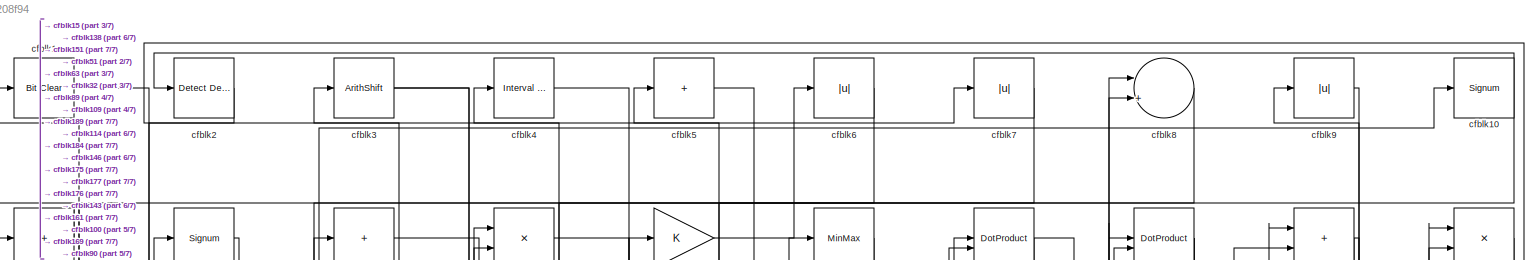
[diagram: root canvas - part 1/7, full width, top band]
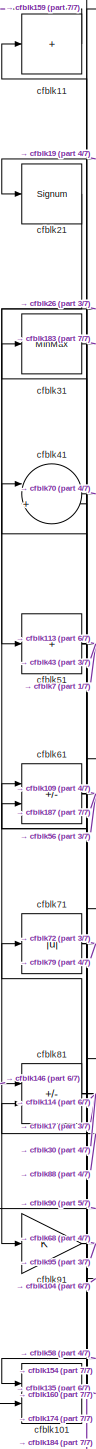
[diagram: root canvas - part 2/7, top left region]
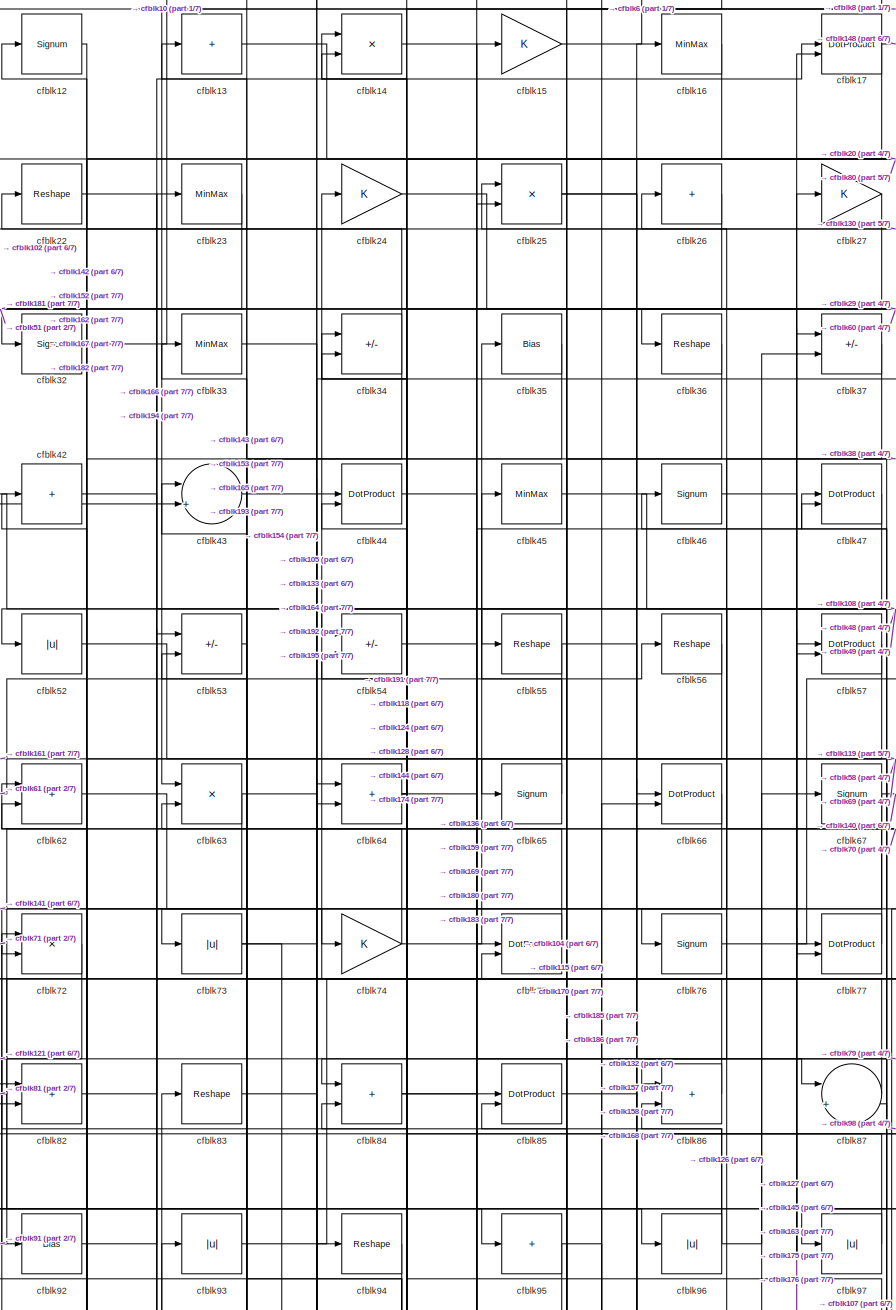
[diagram: root canvas - part 3/7, top center region]
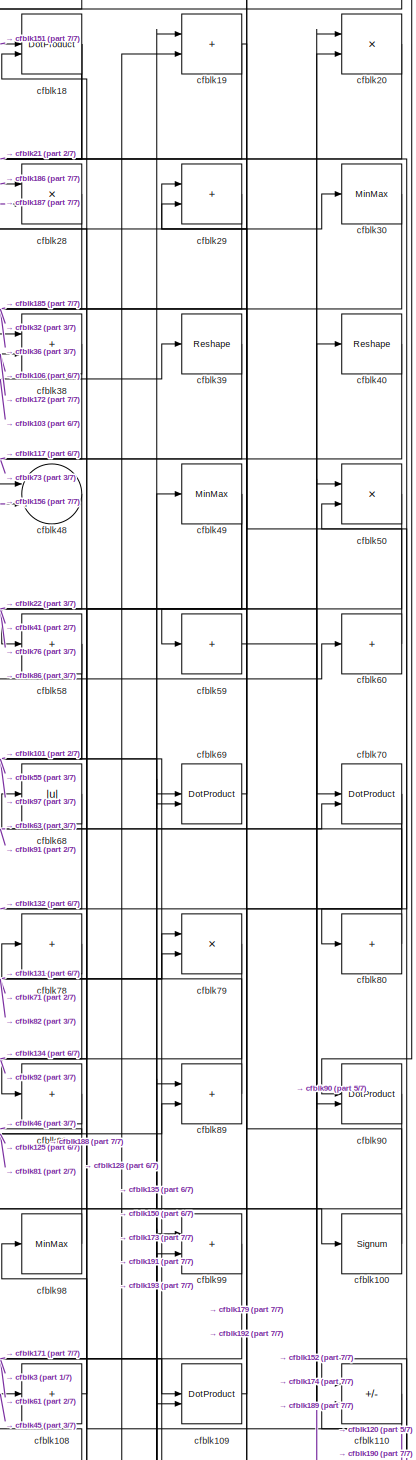
[diagram: root canvas - part 4/7, top right region]
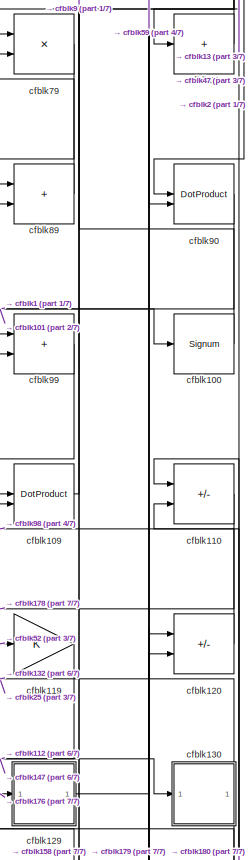
[diagram: root canvas - part 5/7, middle right region]
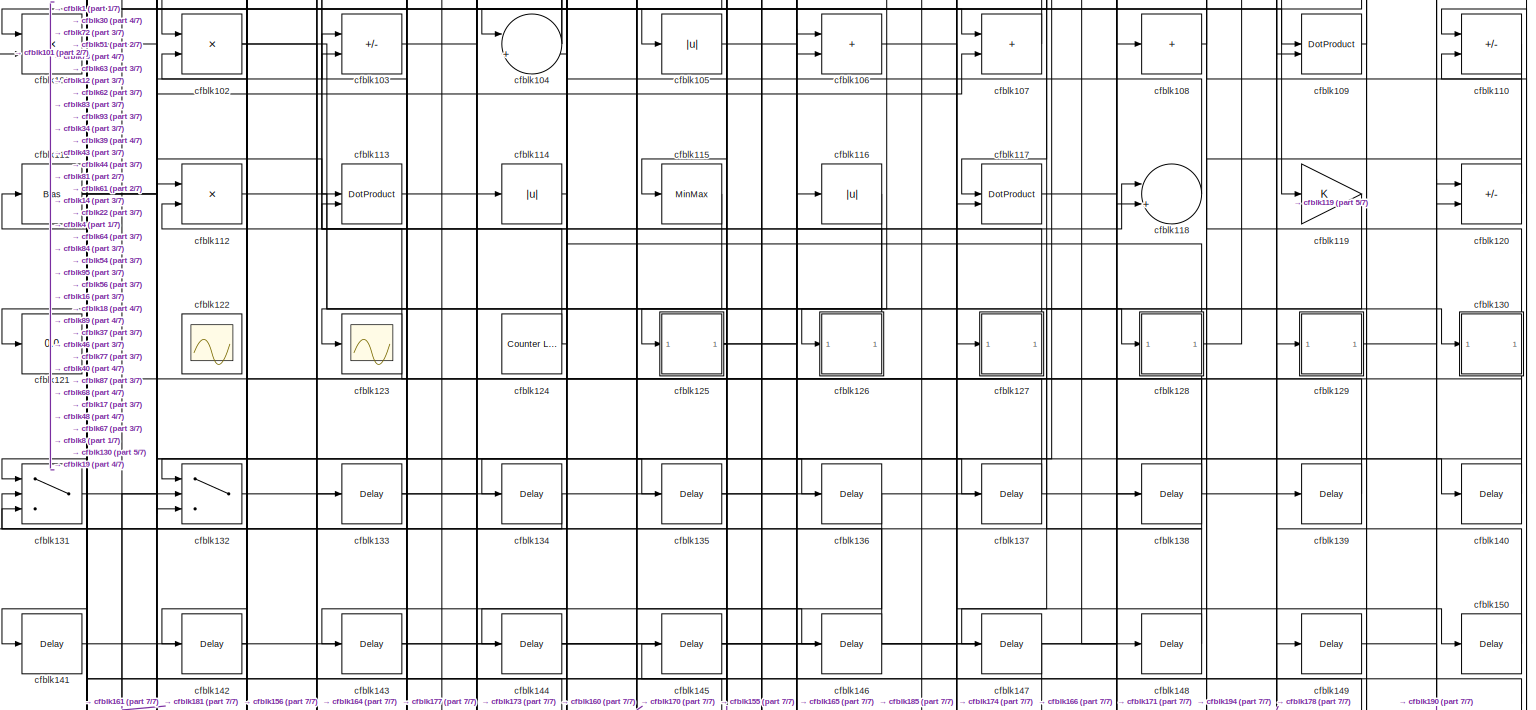
[diagram: root canvas - part 6/7, full width, middle band]
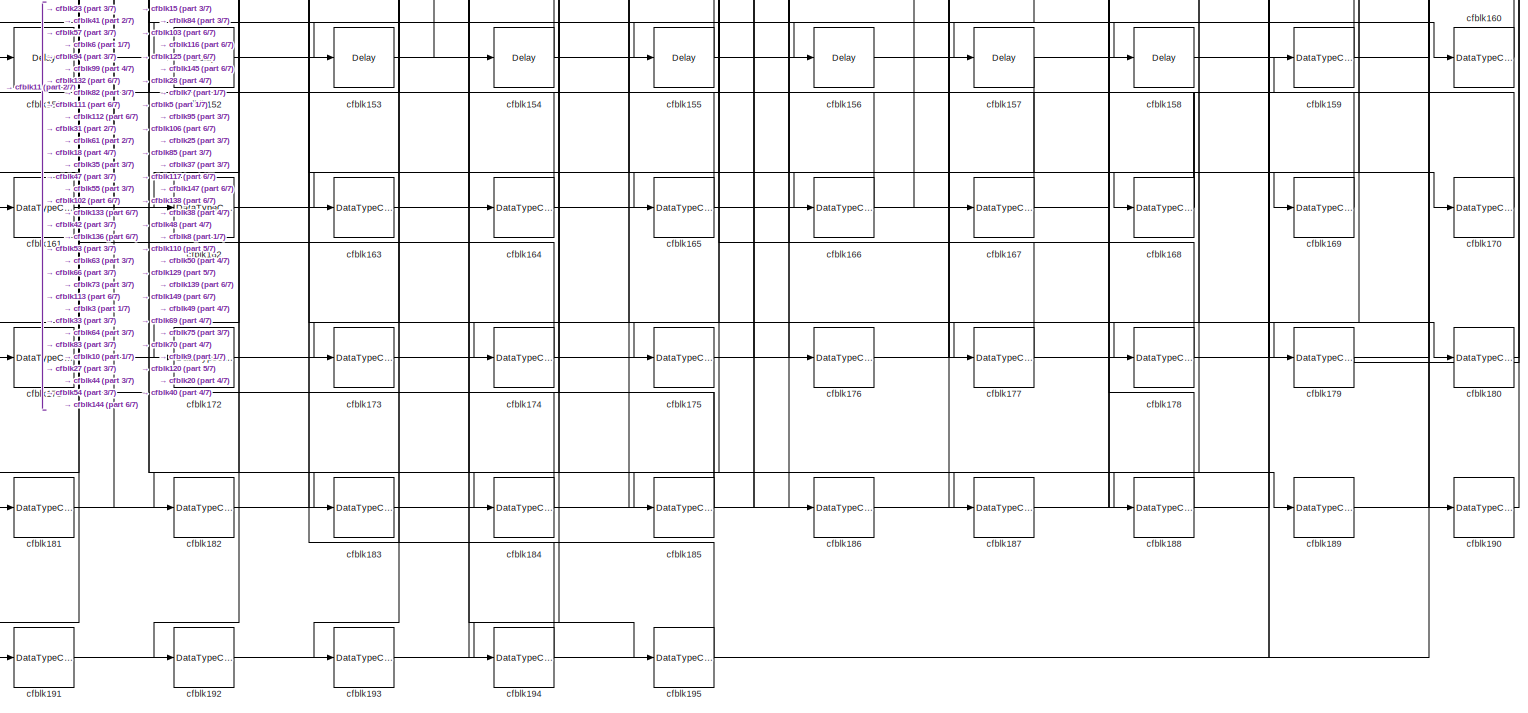
[diagram: root canvas - part 7/7, full width, bottom band]
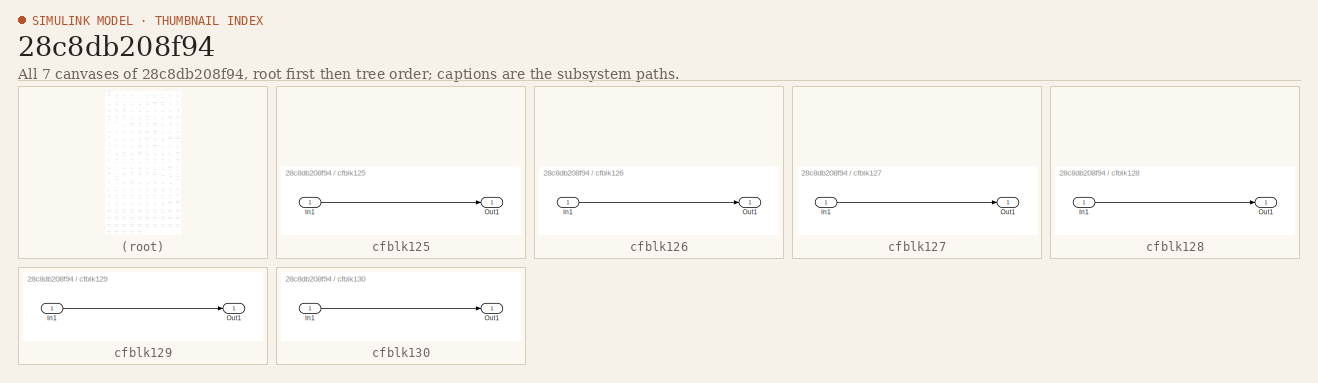
[diagram: thumbnail index - all 7 canvases of the model, root first then tree order]
MODEL slx_28c8db208f94
KIND model
CONFIG AbsTol = auto
CONFIG EnableMultiTasking = off
CONFIG FixedStep = auto
CONFIG MaxStep = auto
CONFIG MinStep = auto
CONFIG RelTol = 1e-3
CONFIG SampleTimeConstraint = Unconstrained
CONFIG SolverName = VariableStepAuto
CONFIG StartTime = 0.0
CONFIG StopTime = 10.0
BLOCK [Reference] cfblk1  REF=simulink/Logic and Bit
Operations/Bit Clear
  LibrarySourceBlock = hdlsllib/Logic and Bit\nOperations/Bit Clear
  SourceBlock = simulink/Logic and Bit\nOperations/Bit Clear
  SourceType = Bit Clear
BLOCK [Signum] cfblk10
BLOCK [Signum] cfblk100
BLOCK [Product] cfblk101
  Inputs = */
  RndMeth = Zero
  SaturateOnIntegerOverflow = on
BLOCK [Product] cfblk102
  Inputs = */
  RndMeth = Zero
  SaturateOnIntegerOverflow = on
BLOCK [Sum] cfblk103
  IconShape = rectangular
  Inputs = +-
BLOCK [Sum] cfblk104
  Inputs = |++
BLOCK [Abs] cfblk105
  SaturateOnIntegerOverflow = off
BLOCK [Sum] cfblk106
  IconShape = rectangular
BLOCK [Sum] cfblk107
  IconShape = rectangular
BLOCK [Sum] cfblk108
  IconShape = rectangular
  Inputs = +
BLOCK [DotProduct] cfblk109
  OutDataTypeStr = Inherit: Inherit via internal rule
BLOCK [Sum] cfblk11
  IconShape = rectangular
  Inputs = +
BLOCK [Sum] cfblk110
  IconShape = rectangular
  Inputs = +-
BLOCK [Bias] cfblk111
  Bias = 0.0
  SaturateOnIntegerOverflow = off
BLOCK [Product] cfblk112
  Inputs = */
  RndMeth = Zero
  SaturateOnIntegerOverflow = on
BLOCK [DotProduct] cfblk113
  OutDataTypeStr = Inherit: Inherit via internal rule
BLOCK [Abs] cfblk114
  SaturateOnIntegerOverflow = off
BLOCK [MinMax] cfblk115
BLOCK [Abs] cfblk116
  SaturateOnIntegerOverflow = off
BLOCK [DotProduct] cfblk117
  OutDataTypeStr = Inherit: Inherit via internal rule
BLOCK [Sum] cfblk118
  Inputs = |++
BLOCK [Gain] cfblk119
BLOCK [Signum] cfblk12
BLOCK [Sum] cfblk120
  IconShape = rectangular
  Inputs = +-
BLOCK [Display] cfblk121
  Decimation = 1
BLOCK [Scope] cfblk122
  Floating = on
  NumInputPorts = 1
  ScopeSpecificationString = Simulink.scopes.TimeScopeBlockCfg('CurrentConfiguration', extmgr.ConfigurationSet(extmgr.Configuration('Core','General UI',true,'FigureColor',[0.156862745098039 0.156862745098039 0.156862745098039]),extmgr.Configuration('Core','Source UI',true),extmgr.Configuration('Sources','WiredSimulink',true,'DataLoggingVariableName','ScopeData1','DataLoggingSaveFormat','StructureWithTime','DataLoggingLimitDat...<+2713ch>
BLOCK [Scope] cfblk123
  Floating = off
  NumInputPorts = 1
  ScopeSpecificationString = Simulink.scopes.TimeScopeBlockCfg('CurrentConfiguration', extmgr.ConfigurationSet(extmgr.Configuration('Core','General UI',true),extmgr.Configuration('Core','Source UI',true),extmgr.Configuration('Sources','WiredSimulink',true,'DataLoggingVariableName','ScopeData2','DataLoggingSaveFormat','Array','DataLoggingLimitDataPoints',true,'DataLoggingDecimation','1'),extmgr.Configuration('Visuals','Time Do...<+868ch>
BLOCK [Reference] cfblk124  REF=hdlsllib/Sources/Counter
Limited
  SourceBlock = hdlsllib/Sources/Counter\nLimited
  SourceType = Counter Limited
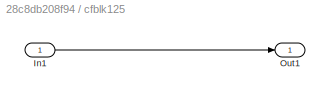
BLOCK [SubSystem] cfblk125
  LibrarySourceBlock = hdlsllib/Ports &\nSubsystems/Subsystem
BLOCK [Inport] cfblk125/In1
BLOCK [Outport] cfblk125/Out1
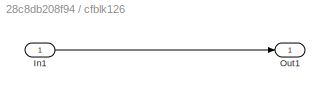
BLOCK [SubSystem] cfblk126
  LibrarySourceBlock = hdlsllib/Ports &\nSubsystems/Subsystem
BLOCK [Inport] cfblk126/In1
BLOCK [Outport] cfblk126/Out1
BLOCK [SubSystem] cfblk127
  LibrarySourceBlock = hdlsllib/Ports &\nSubsystems/Subsystem
BLOCK [Inport] cfblk127/In1
BLOCK [Outport] cfblk127/Out1
BLOCK [SubSystem] cfblk128
  LibrarySourceBlock = hdlsllib/Ports &\nSubsystems/Subsystem
BLOCK [Inport] cfblk128/In1
BLOCK [Outport] cfblk128/Out1
BLOCK [SubSystem] cfblk129
  LibrarySourceBlock = hdlsllib/Ports &\nSubsystems/Subsystem
BLOCK [Inport] cfblk129/In1
BLOCK [Outport] cfblk129/Out1
BLOCK [Sum] cfblk13
  IconShape = rectangular
  Inputs = +
BLOCK [SubSystem] cfblk130
  LibrarySourceBlock = hdlsllib/Ports &\nSubsystems/Subsystem
BLOCK [Inport] cfblk130/In1
BLOCK [Outport] cfblk130/Out1
BLOCK [Switch] cfblk131
  InputSameDT = off
  SaturateOnIntegerOverflow = off
BLOCK [Switch] cfblk132
  InputSameDT = off
  SaturateOnIntegerOverflow = off
BLOCK [Delay] cfblk133
  InputPortMap = u0
  SampleTime = 1
BLOCK [Delay] cfblk134
  InputPortMap = u0
  SampleTime = 1
BLOCK [Delay] cfblk135
  InputPortMap = u0
  SampleTime = 1
BLOCK [Delay] cfblk136
  InputPortMap = u0
  SampleTime = 1
BLOCK [Delay] cfblk137
  InputPortMap = u0
  SampleTime = 1
BLOCK [Delay] cfblk138
  InputPortMap = u0
  SampleTime = 1
BLOCK [Delay] cfblk139
  InputPortMap = u0
  SampleTime = 1
BLOCK [Product] cfblk14
  Inputs = */
  RndMeth = Zero
  SaturateOnIntegerOverflow = on
BLOCK [Delay] cfblk140
  InputPortMap = u0
  SampleTime = 1
BLOCK [Delay] cfblk141
  InputPortMap = u0
  SampleTime = 1
BLOCK [Delay] cfblk142
  InputPortMap = u0
  SampleTime = 1
BLOCK [Delay] cfblk143
  InputPortMap = u0
  SampleTime = 1
BLOCK [Delay] cfblk144
  InputPortMap = u0
  SampleTime = 1
BLOCK [Delay] cfblk145
  InputPortMap = u0
  SampleTime = 1
BLOCK [Delay] cfblk146
  InputPortMap = u0
  SampleTime = 1
BLOCK [Delay] cfblk147
  InputPortMap = u0
  SampleTime = 1
BLOCK [Delay] cfblk148
  InputPortMap = u0
  SampleTime = 1
BLOCK [Delay] cfblk149
  InputPortMap = u0
  SampleTime = 1
BLOCK [Gain] cfblk15
BLOCK [Delay] cfblk150
  InputPortMap = u0
  SampleTime = 1
BLOCK [Delay] cfblk151
  InputPortMap = u0
  SampleTime = 1
BLOCK [Delay] cfblk152
  InputPortMap = u0
  SampleTime = 1
BLOCK [Delay] cfblk153
  InputPortMap = u0
  SampleTime = 1
BLOCK [Delay] cfblk154
  InputPortMap = u0
  SampleTime = 1
BLOCK [Delay] cfblk155
  InputPortMap = u0
  SampleTime = 1
BLOCK [Delay] cfblk156
  InputPortMap = u0
  SampleTime = 1
BLOCK [Delay] cfblk157
  InputPortMap = u0
  SampleTime = 1
BLOCK [Delay] cfblk158
  InputPortMap = u0
  SampleTime = 1
BLOCK [DataTypeConversion] cfblk159
  OutDataTypeStr = uint8
  RndMeth = Floor
  SaturateOnIntegerOverflow = off
BLOCK [MinMax] cfblk16
BLOCK [DataTypeConversion] cfblk160
  OutDataTypeStr = uint8
  RndMeth = Floor
  SaturateOnIntegerOverflow = off
BLOCK [DataTypeConversion] cfblk161
  RndMeth = Floor
  SaturateOnIntegerOverflow = off
BLOCK [DataTypeConversion] cfblk162
  OutDataTypeStr = uint8
  RndMeth = Floor
  SaturateOnIntegerOverflow = off
BLOCK [DataTypeConversion] cfblk163
  OutDataTypeStr = uint8
  RndMeth = Floor
  SaturateOnIntegerOverflow = off
BLOCK [DataTypeConversion] cfblk164
  OutDataTypeStr = uint8
  RndMeth = Floor
  SaturateOnIntegerOverflow = off
BLOCK [DataTypeConversion] cfblk165
  OutDataTypeStr = uint8
  RndMeth = Floor
  SaturateOnIntegerOverflow = off
BLOCK [DataTypeConversion] cfblk166
  RndMeth = Floor
  SaturateOnIntegerOverflow = off
BLOCK [DataTypeConversion] cfblk167
  OutDataTypeStr = uint8
  RndMeth = Floor
  SaturateOnIntegerOverflow = off
BLOCK [DataTypeConversion] cfblk168
  RndMeth = Floor
  SaturateOnIntegerOverflow = off
BLOCK [DataTypeConversion] cfblk169
  OutDataTypeStr = uint8
  RndMeth = Floor
  SaturateOnIntegerOverflow = off
BLOCK [DotProduct] cfblk17
  OutDataTypeStr = Inherit: Inherit via internal rule
BLOCK [DataTypeConversion] cfblk170
  OutDataTypeStr = uint8
  RndMeth = Floor
  SaturateOnIntegerOverflow = off
BLOCK [DataTypeConversion] cfblk171
  OutDataTypeStr = uint8
  RndMeth = Floor
  SaturateOnIntegerOverflow = off
BLOCK [DataTypeConversion] cfblk172
  OutDataTypeStr = uint8
  RndMeth = Floor
  SaturateOnIntegerOverflow = off
BLOCK [DataTypeConversion] cfblk173
  OutDataTypeStr = uint8
  RndMeth = Floor
  SaturateOnIntegerOverflow = off
BLOCK [DataTypeConversion] cfblk174
  RndMeth = Floor
  SaturateOnIntegerOverflow = off
BLOCK [DataTypeConversion] cfblk175
  OutDataTypeStr = uint8
  RndMeth = Floor
  SaturateOnIntegerOverflow = off
BLOCK [DataTypeConversion] cfblk176
  RndMeth = Floor
  SaturateOnIntegerOverflow = off
BLOCK [DataTypeConversion] cfblk177
  OutDataTypeStr = uint8
  RndMeth = Floor
  SaturateOnIntegerOverflow = off
BLOCK [DataTypeConversion] cfblk178
  RndMeth = Floor
  SaturateOnIntegerOverflow = off
BLOCK [DataTypeConversion] cfblk179
  OutDataTypeStr = uint8
  RndMeth = Floor
  SaturateOnIntegerOverflow = off
BLOCK [DotProduct] cfblk18
  OutDataTypeStr = Inherit: Inherit via internal rule
BLOCK [DataTypeConversion] cfblk180
  OutDataTypeStr = uint8
  RndMeth = Floor
  SaturateOnIntegerOverflow = off
BLOCK [DataTypeConversion] cfblk181
  RndMeth = Floor
  SaturateOnIntegerOverflow = off
BLOCK [DataTypeConversion] cfblk182
  OutDataTypeStr = uint8
  RndMeth = Floor
  SaturateOnIntegerOverflow = off
BLOCK [DataTypeConversion] cfblk183
  OutDataTypeStr = uint8
  RndMeth = Floor
  SaturateOnIntegerOverflow = off
BLOCK [DataTypeConversion] cfblk184
  OutDataTypeStr = uint8
  RndMeth = Floor
  SaturateOnIntegerOverflow = off
BLOCK [DataTypeConversion] cfblk185
  RndMeth = Floor
  SaturateOnIntegerOverflow = off
BLOCK [DataTypeConversion] cfblk186
  OutDataTypeStr = uint8
  RndMeth = Floor
  SaturateOnIntegerOverflow = off
BLOCK [DataTypeConversion] cfblk187
  OutDataTypeStr = uint8
  RndMeth = Floor
  SaturateOnIntegerOverflow = off
BLOCK [DataTypeConversion] cfblk188
  OutDataTypeStr = uint8
  RndMeth = Floor
  SaturateOnIntegerOverflow = off
BLOCK [DataTypeConversion] cfblk189
  OutDataTypeStr = uint8
  RndMeth = Floor
  SaturateOnIntegerOverflow = off
BLOCK [Sum] cfblk19
  IconShape = rectangular
BLOCK [DataTypeConversion] cfblk190
  OutDataTypeStr = uint8
  RndMeth = Floor
  SaturateOnIntegerOverflow = off
BLOCK [DataTypeConversion] cfblk191
  OutDataTypeStr = uint8
  RndMeth = Floor
  SaturateOnIntegerOverflow = off
BLOCK [DataTypeConversion] cfblk192
  OutDataTypeStr = uint8
  RndMeth = Floor
  SaturateOnIntegerOverflow = off
BLOCK [DataTypeConversion] cfblk193
  RndMeth = Floor
  SaturateOnIntegerOverflow = off
BLOCK [DataTypeConversion] cfblk194
  OutDataTypeStr = uint8
  RndMeth = Floor
  SaturateOnIntegerOverflow = off
BLOCK [DataTypeConversion] cfblk195
  OutDataTypeStr = uint8
  RndMeth = Floor
  SaturateOnIntegerOverflow = off
BLOCK [Reference] cfblk2  REF=simulink/Logic and Bit
Operations/Detect
Decrease
  LibrarySourceBlock = hdlsllib/Logic and Bit\nOperations/Detect\nDecrease
  SourceBlock = simulink/Logic and Bit\nOperations/Detect\nDecrease
  SourceType = Detect Decrease
BLOCK [Product] cfblk20
  Inputs = */
  RndMeth = Zero
  SaturateOnIntegerOverflow = on
BLOCK [Signum] cfblk21
BLOCK [Reshape] cfblk22
BLOCK [MinMax] cfblk23
BLOCK [Gain] cfblk24
BLOCK [Product] cfblk25
  Inputs = */
  RndMeth = Zero
  SaturateOnIntegerOverflow = on
BLOCK [Sum] cfblk26
  IconShape = rectangular
  Inputs = +
BLOCK [Gain] cfblk27
BLOCK [Product] cfblk28
  Inputs = */
  RndMeth = Zero
  SaturateOnIntegerOverflow = on
BLOCK [Sum] cfblk29
  IconShape = rectangular
BLOCK [ArithShift] cfblk3
  BitShiftNumber = 8
  InputPortMap = u0
BLOCK [MinMax] cfblk30
BLOCK [MinMax] cfblk31
BLOCK [Signum] cfblk32
BLOCK [MinMax] cfblk33
BLOCK [Sum] cfblk34
  IconShape = rectangular
  Inputs = +-
BLOCK [Bias] cfblk35
  Bias = 0.0
  SaturateOnIntegerOverflow = off
BLOCK [Reshape] cfblk36
BLOCK [Sum] cfblk37
  IconShape = rectangular
  Inputs = +-
BLOCK [Sum] cfblk38
  IconShape = rectangular
BLOCK [Reshape] cfblk39
BLOCK [Reference] cfblk4  REF=hdlsllib/Logic and Bit
Operations/Interval Test
  SourceBlock = hdlsllib/Logic and Bit\nOperations/Interval Test
  SourceType = Interval Test
BLOCK [Reshape] cfblk40
BLOCK [Sum] cfblk41
  Inputs = |++
BLOCK [Sum] cfblk42
  IconShape = rectangular
  Inputs = +
BLOCK [Sum] cfblk43
  Inputs = |++
BLOCK [DotProduct] cfblk44
  OutDataTypeStr = Inherit: Inherit via internal rule
BLOCK [MinMax] cfblk45
BLOCK [Signum] cfblk46
BLOCK [DotProduct] cfblk47
  OutDataTypeStr = Inherit: Inherit via internal rule
BLOCK [Sum] cfblk48
  Inputs = |++
BLOCK [MinMax] cfblk49
BLOCK [Sum] cfblk5
  IconShape = rectangular
  Inputs = +
BLOCK [Product] cfblk50
  Inputs = */
  RndMeth = Zero
  SaturateOnIntegerOverflow = on
BLOCK [Sum] cfblk51
  IconShape = rectangular
  Inputs = +
BLOCK [Abs] cfblk52
  SaturateOnIntegerOverflow = off
BLOCK [Sum] cfblk53
  IconShape = rectangular
  Inputs = +-
BLOCK [Sum] cfblk54
  IconShape = rectangular
  Inputs = +-
BLOCK [Reshape] cfblk55
BLOCK [Reshape] cfblk56
BLOCK [DotProduct] cfblk57
  OutDataTypeStr = Inherit: Inherit via internal rule
BLOCK [Sum] cfblk58
  IconShape = rectangular
  Inputs = +
BLOCK [Sum] cfblk59
  IconShape = rectangular
  Inputs = +
BLOCK [Abs] cfblk6
  SaturateOnIntegerOverflow = off
BLOCK [Sum] cfblk60
  IconShape = rectangular
  Inputs = +
BLOCK [Sum] cfblk61
  IconShape = rectangular
  Inputs = +-
BLOCK [Sum] cfblk62
  IconShape = rectangular
BLOCK [Product] cfblk63
  Inputs = */
  RndMeth = Zero
  SaturateOnIntegerOverflow = on
BLOCK [Sum] cfblk64
  IconShape = rectangular
BLOCK [Signum] cfblk65
BLOCK [DotProduct] cfblk66
  OutDataTypeStr = Inherit: Inherit via internal rule
BLOCK [Signum] cfblk67
BLOCK [Abs] cfblk68
  SaturateOnIntegerOverflow = off
BLOCK [DotProduct] cfblk69
  OutDataTypeStr = Inherit: Inherit via internal rule
BLOCK [Abs] cfblk7
  SaturateOnIntegerOverflow = off
BLOCK [DotProduct] cfblk70
  OutDataTypeStr = Inherit: Inherit via internal rule
BLOCK [Abs] cfblk71
  SaturateOnIntegerOverflow = off
BLOCK [Product] cfblk72
  Inputs = */
  RndMeth = Zero
  SaturateOnIntegerOverflow = on
BLOCK [Abs] cfblk73
  SaturateOnIntegerOverflow = off
BLOCK [Gain] cfblk74
BLOCK [DotProduct] cfblk75
  OutDataTypeStr = Inherit: Inherit via internal rule
BLOCK [Signum] cfblk76
BLOCK [DotProduct] cfblk77
  OutDataTypeStr = Inherit: Inherit via internal rule
BLOCK [Sum] cfblk78
  IconShape = rectangular
  Inputs = +
BLOCK [Product] cfblk79
  Inputs = */
  RndMeth = Zero
  SaturateOnIntegerOverflow = on
BLOCK [Sum] cfblk8
  Inputs = |++
BLOCK [Sum] cfblk80
  IconShape = rectangular
  Inputs = +
BLOCK [Sum] cfblk81
  IconShape = rectangular
  Inputs = +-
BLOCK [Sum] cfblk82
  IconShape = rectangular
BLOCK [Reshape] cfblk83
BLOCK [Sum] cfblk84
  IconShape = rectangular
BLOCK [DotProduct] cfblk85
  OutDataTypeStr = Inherit: Inherit via internal rule
BLOCK [Sum] cfblk86
  IconShape = rectangular
BLOCK [Sum] cfblk87
  Inputs = |++
BLOCK [Sum] cfblk88
  IconShape = rectangular
  Inputs = +
BLOCK [Sum] cfblk89
  IconShape = rectangular
BLOCK [Abs] cfblk9
  SaturateOnIntegerOverflow = off
BLOCK [DotProduct] cfblk90
  OutDataTypeStr = Inherit: Inherit via internal rule
BLOCK [Gain] cfblk91
BLOCK [Bias] cfblk92
  Bias = 0.0
  SaturateOnIntegerOverflow = off
BLOCK [Abs] cfblk93
  SaturateOnIntegerOverflow = off
BLOCK [Reshape] cfblk94
BLOCK [Sum] cfblk95
  IconShape = rectangular
  Inputs = +
BLOCK [Abs] cfblk96
  SaturateOnIntegerOverflow = off
BLOCK [Abs] cfblk97
  SaturateOnIntegerOverflow = off
BLOCK [MinMax] cfblk98
BLOCK [Sum] cfblk99
  IconShape = rectangular
LINE cfblk100:1 -> cfblk9:1
LINE cfblk101:1 -> cfblk135:1
NET cfblk102:1 -> cfblk128:1, cfblk177:1
LINE cfblk103:1 -> cfblk39:1
NET cfblk104:1 -> cfblk43:1, cfblk61:1
LINE cfblk105:1 -> cfblk137:1
LINE cfblk106:1 -> cfblk150:1
LINE cfblk107:1 -> cfblk34:1
LINE cfblk108:1 -> cfblk18:2
LINE cfblk109:1 -> cfblk29:1
NET cfblk10:1 -> cfblk184:1, cfblk2:1
LINE cfblk110:1 -> cfblk178:1
NET cfblk111:1 -> cfblk103:1, cfblk107:2, cfblk156:1
LINE cfblk112:1 -> cfblk130:1
LINE cfblk113:1 -> cfblk160:1
LINE cfblk114:1 -> cfblk4:1
LINE cfblk115:1 -> cfblk123:1
LINE cfblk116:1 -> cfblk165:1
LINE cfblk117:1 -> cfblk48:1
LINE cfblk118:1 -> cfblk22:1
LINE cfblk119:1 -> cfblk147:1
LINE cfblk11:1 -> cfblk159:1
LINE cfblk120:1 -> cfblk98:1
NET cfblk124:1 -> cfblk112:2, cfblk14:2
LINE cfblk125/In1:1 -> cfblk125/Out1:1
NET cfblk125:1 -> cfblk118:1, cfblk155:1, cfblk89:2
LINE cfblk126/In1:1 -> cfblk126/Out1:1
LINE cfblk126:1 -> cfblk83:1
LINE cfblk127/In1:1 -> cfblk127/Out1:1
LINE cfblk127:1 -> cfblk93:1
LINE cfblk128/In1:1 -> cfblk128/Out1:1
NET cfblk128:1 -> cfblk131:2, cfblk19:2, cfblk84:2
LINE cfblk129/In1:1 -> cfblk129/Out1:1
LINE cfblk129:1 -> cfblk120:1
LINE cfblk12:1 -> cfblk142:1
LINE cfblk130/In1:1 -> cfblk130/Out1:1
NET cfblk130:1 -> cfblk132:3, cfblk25:1
LINE cfblk131:1 -> cfblk78:1
LINE cfblk132:1 -> cfblk16:1
LINE cfblk133:1 -> cfblk44:1
LINE cfblk134:1 -> cfblk131:3
LINE cfblk135:1 -> cfblk19:1
LINE cfblk136:1 -> cfblk173:1
LINE cfblk137:1 -> cfblk104:2
LINE cfblk138:1 -> cfblk1:1
LINE cfblk139:1 -> cfblk113:2
LINE cfblk13:1 -> cfblk80:1
LINE cfblk140:1 -> cfblk62:2
LINE cfblk141:1 -> cfblk118:2
LINE cfblk142:1 -> cfblk102:2
LINE cfblk143:1 -> cfblk8:2
LINE cfblk144:1 -> cfblk170:1
LINE cfblk145:1 -> cfblk77:1
LINE cfblk146:1 -> cfblk81:1
LINE cfblk147:1 -> cfblk194:1
LINE cfblk148:1 -> cfblk87:2
LINE cfblk149:1 -> cfblk190:1
LINE cfblk14:1 -> cfblk96:1
LINE cfblk150:1 -> cfblk89:1
LINE cfblk151:1 -> cfblk18:1
LINE cfblk152:1 -> cfblk20:1
LINE cfblk153:1 -> cfblk64:1
LINE cfblk154:1 -> cfblk61:2
LINE cfblk155:1 -> cfblk103:2
LINE cfblk156:1 -> cfblk48:2
LINE cfblk157:1 -> cfblk163:1
LINE cfblk158:1 -> cfblk120:2
LINE cfblk159:1 -> cfblk75:1
LINE cfblk15:1 -> cfblk6:1
LINE cfblk160:1 -> cfblk11:1
NET cfblk161:1 -> cfblk133:1, cfblk82:2, cfblk8:1
LINE cfblk162:1 -> cfblk57:1
LINE cfblk163:1 -> cfblk57:2
LINE cfblk164:1 -> cfblk112:1
LINE cfblk165:1 -> cfblk33:1
NET cfblk166:1 -> cfblk145:1, cfblk37:2
LINE cfblk167:1 -> cfblk42:1
NET cfblk168:1 -> cfblk44:2, cfblk63:2, cfblk75:2, cfblk82:1
LINE cfblk169:1 -> cfblk85:1
LINE cfblk16:1 -> cfblk54:1
LINE cfblk170:1 -> cfblk85:2
LINE cfblk171:1 -> cfblk117:2
LINE cfblk172:1 -> cfblk99:1
LINE cfblk173:1 -> cfblk99:2
NET cfblk174:1 -> cfblk116:1, cfblk40:1, cfblk41:2
LINE cfblk175:1 -> cfblk27:1
NET cfblk176:1 -> cfblk129:1, cfblk37:1
LINE cfblk177:1 -> cfblk5:1
NET cfblk178:1 -> cfblk106:1, cfblk149:1
LINE cfblk179:1 -> cfblk110:1
NET cfblk17:1 -> cfblk148:1, cfblk52:1
LINE cfblk180:1 -> cfblk110:2
NET cfblk181:1 -> cfblk132:2, cfblk167:1, cfblk66:1
LINE cfblk182:1 -> cfblk23:1
LINE cfblk183:1 -> cfblk15:1
LINE cfblk184:1 -> cfblk31:1
NET cfblk185:1 -> cfblk111:1, cfblk138:1, cfblk139:1, cfblk54:2, cfblk66:2
LINE cfblk186:1 -> cfblk28:1
LINE cfblk187:1 -> cfblk28:2
LINE cfblk188:1 -> cfblk38:1
LINE cfblk189:1 -> cfblk50:1
NET cfblk18:1 -> cfblk106:2, cfblk172:1, cfblk38:2
LINE cfblk190:1 -> cfblk50:2
LINE cfblk191:1 -> cfblk69:1
LINE cfblk192:1 -> cfblk94:1
NET cfblk193:1 -> cfblk20:2, cfblk49:1
LINE cfblk194:1 -> cfblk53:1
LINE cfblk195:1 -> cfblk53:2
NET cfblk19:1 -> cfblk21:1, cfblk59:1
LINE cfblk1:1 -> cfblk100:1
LINE cfblk20:1 -> cfblk55:1
LINE cfblk21:1 -> cfblk91:1
LINE cfblk22:1 -> cfblk58:1
LINE cfblk23:1 -> cfblk181:1
LINE cfblk24:1 -> cfblk77:2
NET cfblk25:1 -> cfblk157:1, cfblk158:1
LINE cfblk26:1 -> cfblk51:1
LINE cfblk27:1 -> cfblk174:1
LINE cfblk28:1 -> cfblk185:1
LINE cfblk29:1 -> cfblk32:1
LINE cfblk2:1 -> cfblk90:1
LINE cfblk30:1 -> cfblk131:1
LINE cfblk31:1 -> cfblk183:1
LINE cfblk32:1 -> cfblk10:1
LINE cfblk33:1 -> cfblk164:1
NET cfblk34:1 -> cfblk12:1, cfblk143:1
LINE cfblk35:1 -> cfblk162:1
LINE cfblk36:1 -> cfblk65:1
LINE cfblk37:1 -> cfblk126:1
LINE cfblk38:1 -> cfblk73:1
LINE cfblk39:1 -> cfblk125:1
NET cfblk3:1 -> cfblk109:1, cfblk189:1
LINE cfblk40:1 -> cfblk117:1
LINE cfblk41:1 -> cfblk70:1
LINE cfblk42:1 -> cfblk166:1
LINE cfblk43:1 -> cfblk105:1
LINE cfblk44:1 -> cfblk87:1
LINE cfblk45:1 -> cfblk108:1
LINE cfblk46:1 -> cfblk127:1
LINE cfblk47:1 -> cfblk182:1
LINE cfblk48:1 -> cfblk76:1
NET cfblk49:1 -> cfblk86:1, cfblk88:1
LINE cfblk4:1 -> cfblk146:1
LINE cfblk50:1 -> cfblk188:1
NET cfblk51:1 -> cfblk113:1, cfblk43:2, cfblk7:1
LINE cfblk52:1 -> cfblk119:1
LINE cfblk53:1 -> cfblk193:1
LINE cfblk54:1 -> cfblk136:1
NET cfblk55:1 -> cfblk152:1, cfblk69:2
LINE cfblk56:1 -> cfblk115:1
LINE cfblk57:1 -> cfblk161:1
NET cfblk58:1 -> cfblk101:1, cfblk97:1
LINE cfblk59:1 -> cfblk90:2
LINE cfblk5:1 -> cfblk176:1
LINE cfblk60:1 -> cfblk36:1
NET cfblk61:1 -> cfblk109:2, cfblk187:1, cfblk56:1
LINE cfblk62:1 -> cfblk74:1
NET cfblk63:1 -> cfblk102:1, cfblk70:2
NET cfblk64:1 -> cfblk107:1, cfblk144:1, cfblk84:1
LINE cfblk65:1 -> cfblk35:1
LINE cfblk66:1 -> cfblk153:1
NET cfblk67:1 -> cfblk140:1, cfblk141:1
LINE cfblk68:1 -> cfblk132:1
LINE cfblk69:1 -> cfblk29:2
LINE cfblk6:1 -> cfblk151:1
NET cfblk70:1 -> cfblk179:1, cfblk192:1
NET cfblk71:1 -> cfblk72:2, cfblk79:2
LINE cfblk72:1 -> cfblk121:1
NET cfblk73:1 -> cfblk154:1, cfblk64:2
NET cfblk74:1 -> cfblk13:1, cfblk45:1
LINE cfblk75:1 -> cfblk62:1
LINE cfblk76:1 -> cfblk60:1
LINE cfblk77:1 -> cfblk26:1
LINE cfblk78:1 -> cfblk134:1
LINE cfblk79:1 -> cfblk92:1
LINE cfblk7:1 -> cfblk175:1
LINE cfblk80:1 -> cfblk47:2
NET cfblk81:1 -> cfblk114:1, cfblk17:2, cfblk30:1, cfblk41:1, cfblk71:1
LINE cfblk82:1 -> cfblk79:1
LINE cfblk83:1 -> cfblk195:1
NET cfblk84:1 -> cfblk180:1, cfblk47:1
LINE cfblk85:1 -> cfblk168:1
LINE cfblk86:1 -> cfblk34:2
LINE cfblk87:1 -> cfblk24:1
LINE cfblk88:1 -> cfblk81:2
LINE cfblk89:1 -> cfblk3:1
LINE cfblk8:1 -> cfblk63:1
LINE cfblk90:1 -> cfblk101:2
NET cfblk91:1 -> cfblk68:1, cfblk95:1
LINE cfblk92:1 -> cfblk17:1
LINE cfblk93:1 -> cfblk25:2
LINE cfblk94:1 -> cfblk191:1
NET cfblk95:1 -> cfblk104:1, cfblk186:1
NET cfblk96:1 -> cfblk67:1, cfblk72:1, cfblk86:2
LINE cfblk97:1 -> cfblk14:1
LINE cfblk98:1 -> cfblk46:1
LINE cfblk99:1 -> cfblk171:1
LINE cfblk9:1 -> cfblk169:1
note: NET lines group one-source signal fan-out (src -> all destinations, sorted); 1:1 wires keep LINE
